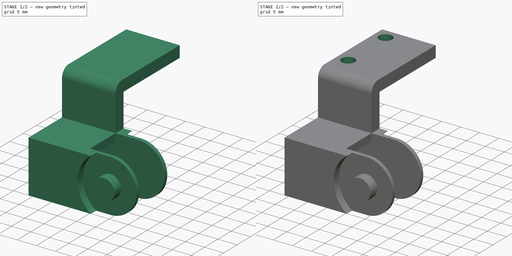
[diagram: build sequence overview — one tinted view per stage of 2, left to right]
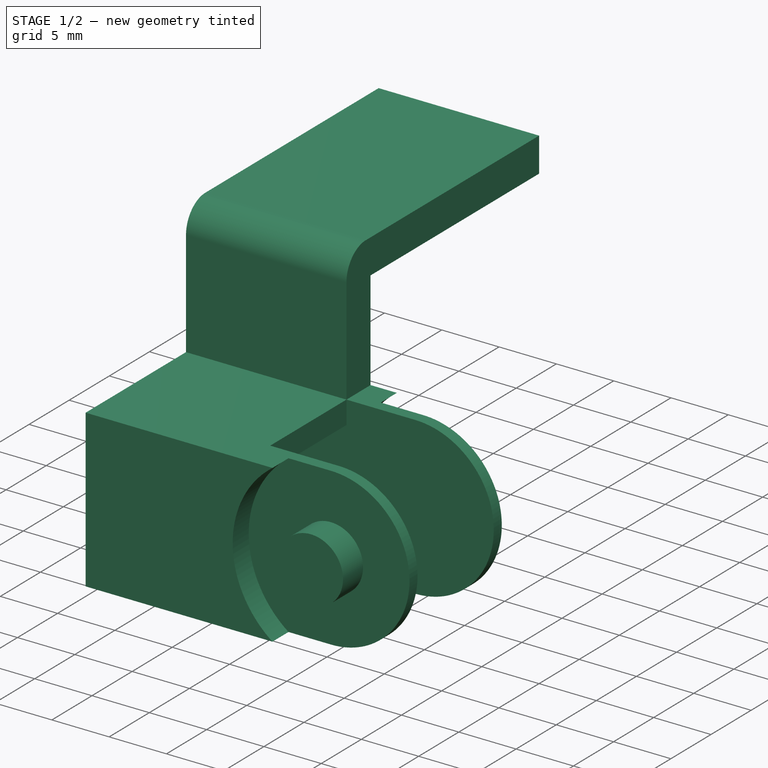
[diagram: stage 1 of 2 — iso view after this stage's code; geometry added in this stage tinted green]
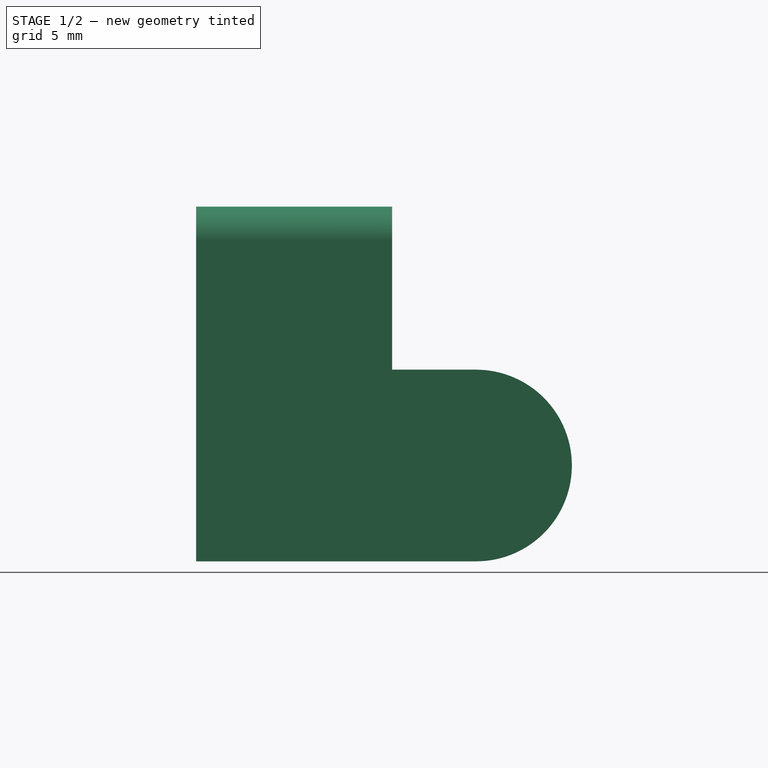
[diagram: stage 1 of 2 — front view after this stage's code; geometry added in this stage tinted green]
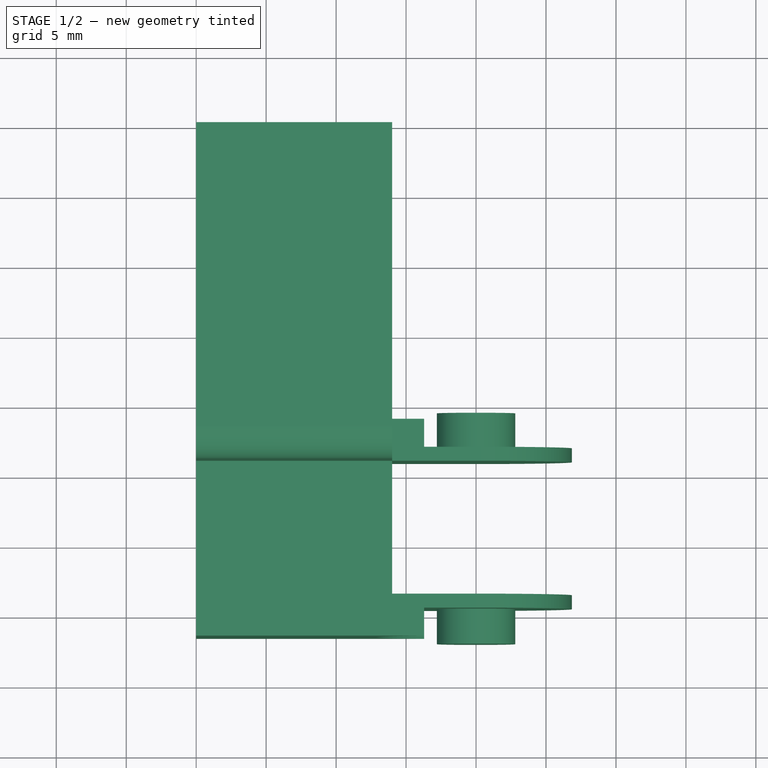
[diagram: stage 1 of 2 — top view after this stage's code; geometry added in this stage tinted green]
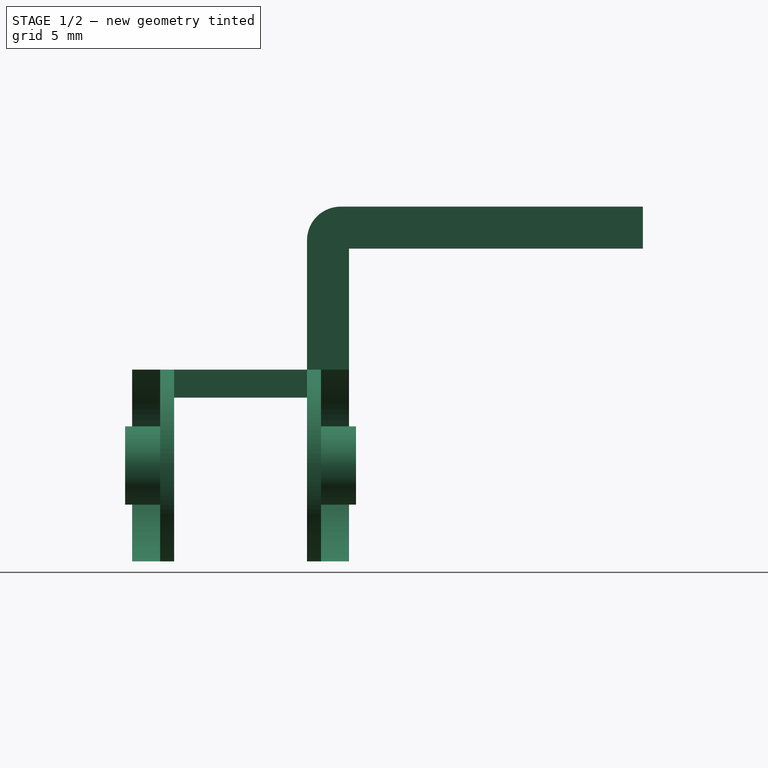
[diagram: stage 1 of 2 — right view after this stage's code; geometry added in this stage tinted green]
FCSTD DOCUMENT  (FreeCAD 0.15R4630 (Git))
Label: cable-chain-carriage
License: All rights reserved
LicenseURL: http://es.wikipedia.org/wiki/Todos_los_derechos_reservados
objects: Part::Feature×1, Part::Fillet×1, Sketcher::SketchObject×1, PartDesign::Pocket×1
note: 5 computed .brp shape members not serialized (recipe doc carries the construction recipe); baked Part::Feature solids carry a one-line shape summary decoded from their .brp

FEATURE [Part::Feature] Fusion
  shape: bbox 26.85 x 37 x 25.35 mm, 34 faces (baked)
FEATURE [Part::Fillet] Fillet
  Base = -> Fusion
  Edges = 1 edges r=2.4: [Edge49]
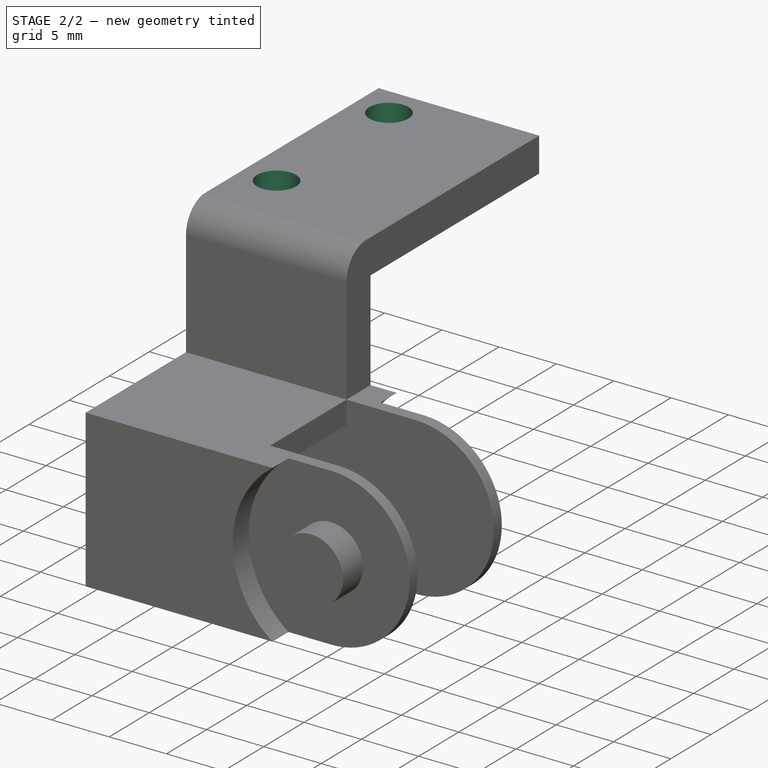
[diagram: stage 2 of 2 — iso view after this stage's code; geometry added in this stage tinted green]
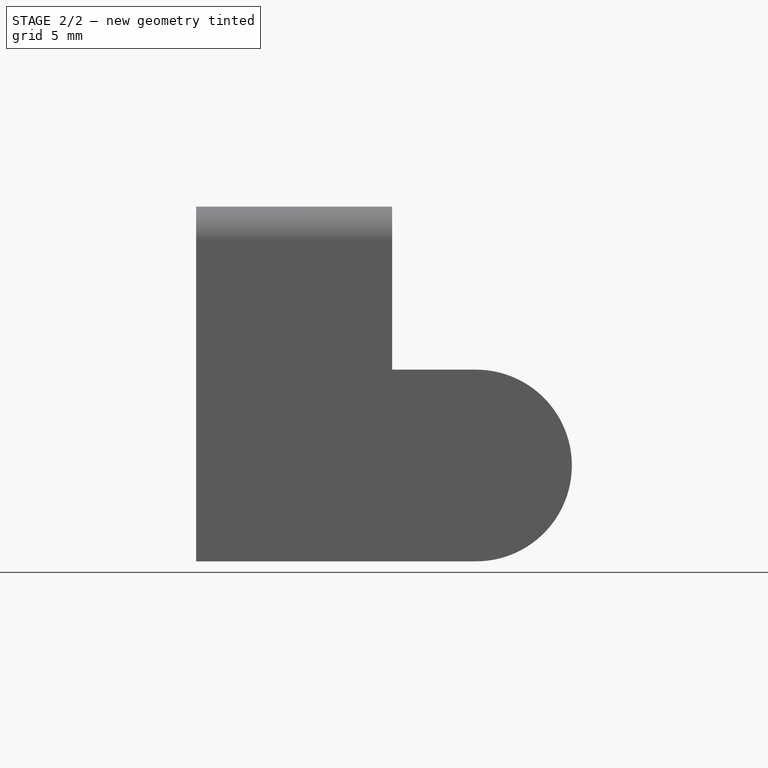
[diagram: stage 2 of 2 — front view after this stage's code; geometry added in this stage tinted green]
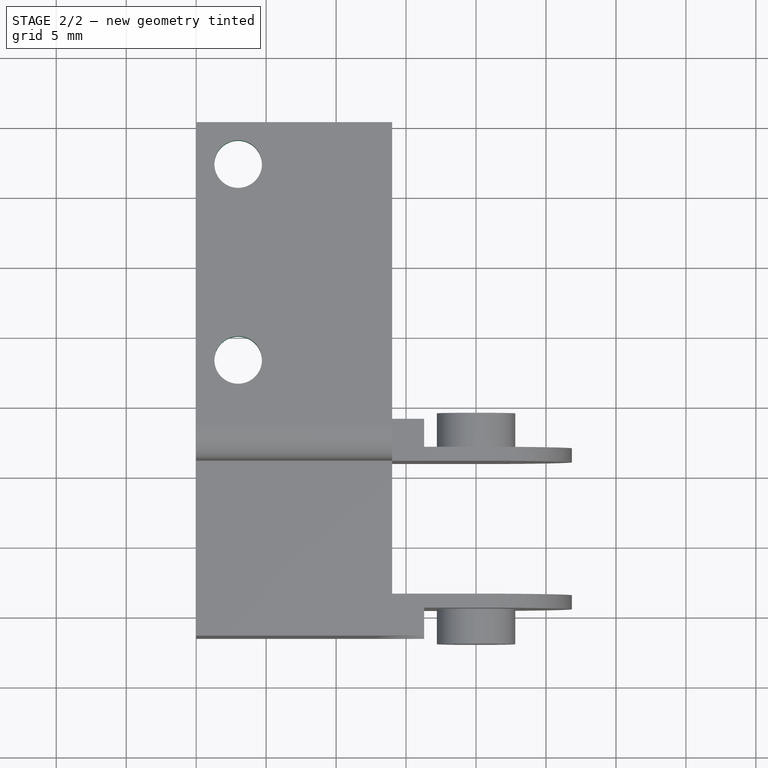
[diagram: stage 2 of 2 — top view after this stage's code; geometry added in this stage tinted green]
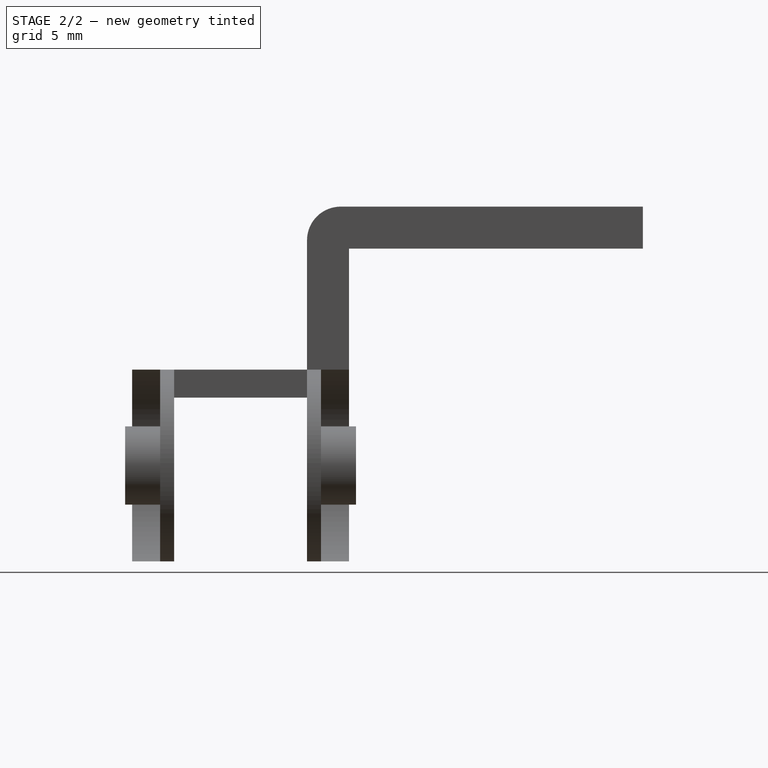
[diagram: stage 2 of 2 — right view after this stage's code; geometry added in this stage tinted green]
FEATURE [Sketcher::SketchObject] Sketch
  Placement = pos=(0,0,-3) rot=(1,0,0;3.14159rad)
  Support = -> Fillet [Face7]
  sketch-geometry (2):
    g0: Circle CenterX=-27 CenterY=13 CenterZ=0 NormalX=0 NormalY=0 NormalZ=1 Radius=1.7
    g1: Circle CenterX=-27 CenterY=27 CenterZ=0 NormalX=0 NormalY=0 NormalZ=1 Radius=1.7
  constraints (6):
    c: Radius(g1) = 1.7
    c: Equal(g1,g0)
    c: DistanceX(g-2,g0) = -27
    c: DistanceX(g-2,g1) = -27
    c: DistanceY(g-1,g0) = 13
    c: DistanceY(g-1,g1) = 27
FEATURE [PartDesign::Pocket] Pocket  label="cable-chain-carriage-final"
  Length = 5
  Sketch = -> Sketch
  Type = 1
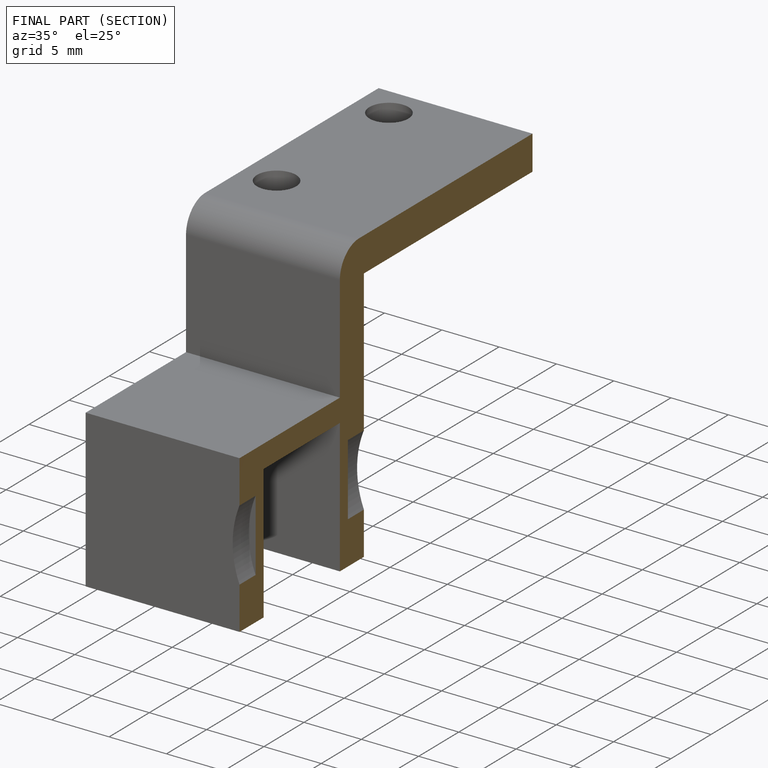
[diagram: finished part — half-section view (interior)]
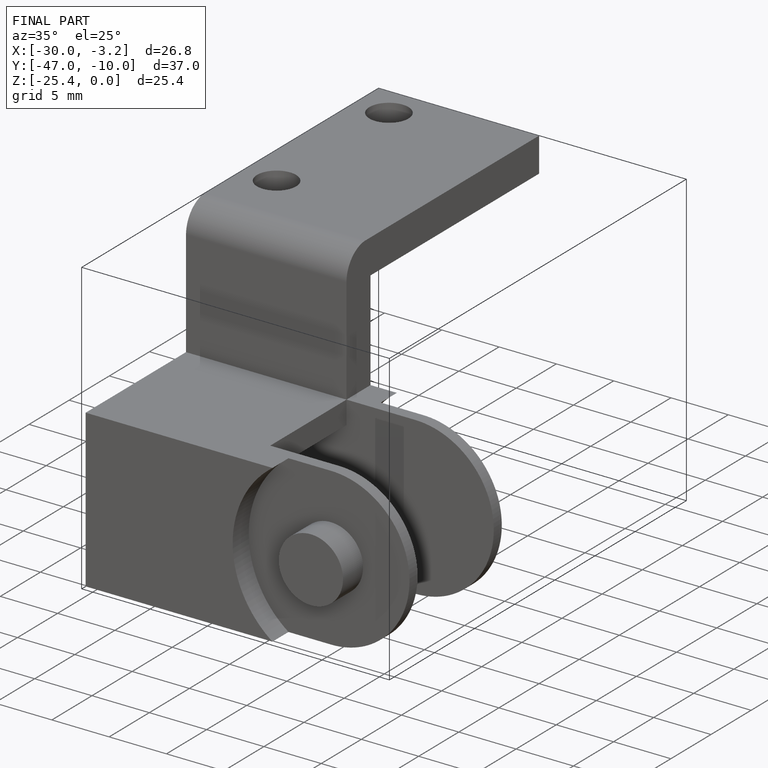
[diagram: finished part — iso view with bounding-box wireframe]
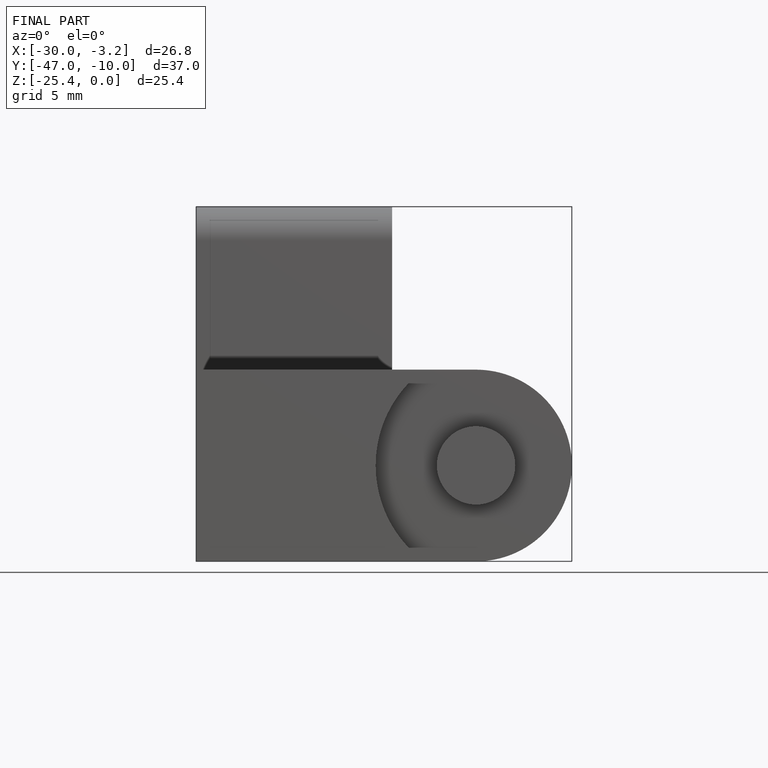
[diagram: finished part — front view with bounding-box wireframe]
